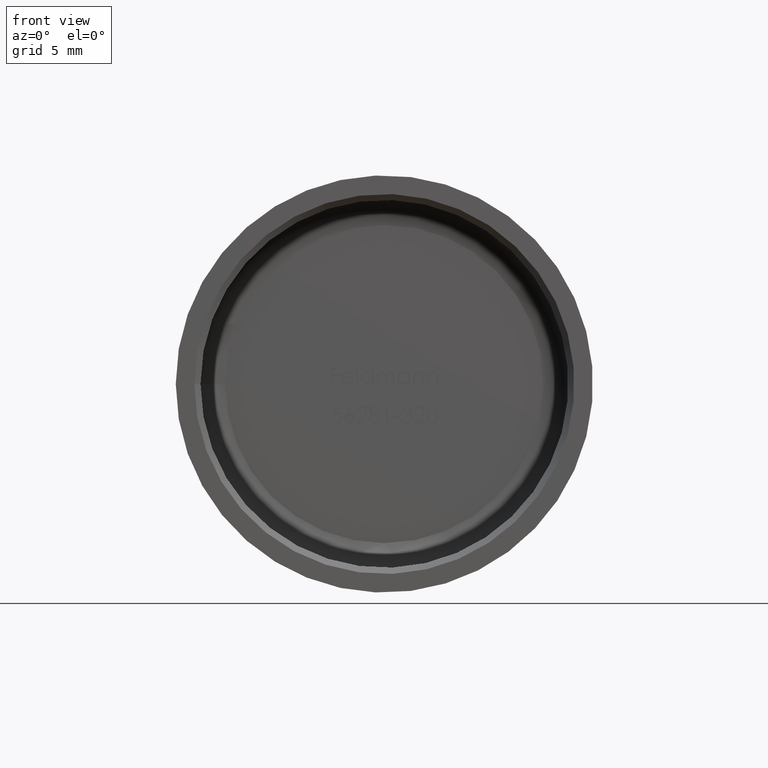
[diagram: clean part render]
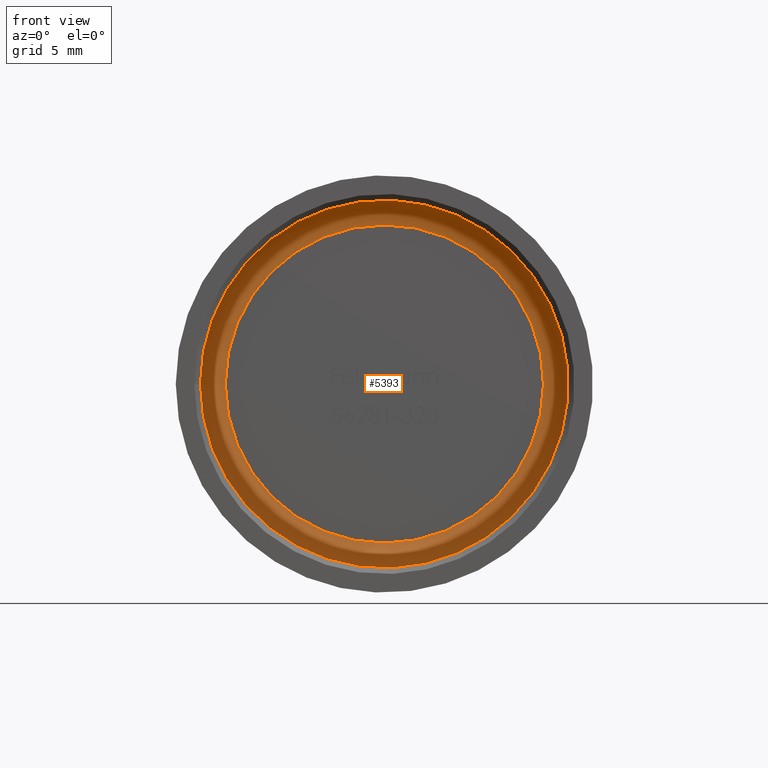
[diagram: same view with one face highlighted and labeled with its STEP entity id]
A machine part, front view. The second image highlights one B-rep face of the part: STEP entity #5393.
In plain terms, the highlighted toroidal blend (fillet) surface has major radius 12.85 mm and minor (blend) radius 2 mm.
Its self-contained STEP definition (entity closure, byte-faithful):
#102 = EDGE_LOOP ( 'NONE', ( #12296 ) ) ;
#1454 = EDGE_CURVE ( 'NONE', #11452, #11452, #11854, .T. ) ;
#2735 = AXIS2_PLACEMENT_3D ( 'NONE', #8286, #8375, #11351 ) ;
#3167 = CARTESIAN_POINT ( 'NONE',  ( -2.174403900812308700E-016, 30.00000000000000000, 0.0000000000000000000 ) ) ;
#4603 = DIRECTION ( 'NONE',  ( -7.248013002707695800E-018, 1.000000000000000000, -0.0000000000000000000 ) ) ;
#5393 = ADVANCED_FACE ( 'NONE', ( #12896, #9121 ), #11250, .F. ) ;
#5947 = CARTESIAN_POINT ( 'NONE',  ( -12.85000000000000000, 32.00000000000000000, 0.0000000000000000000 ) ) ;
#6100 = AXIS2_PLACEMENT_3D ( 'NONE', #6844, #4603, #13133 ) ;
#6844 = CARTESIAN_POINT ( 'NONE',  ( 0.0000000000000000000, 30.00000000000000000, 0.0000000000000000000 ) ) ;
#7048 = CARTESIAN_POINT ( 'NONE',  ( -14.84999999999999800, 30.00000000000000000, 0.0000000000000000000 ) ) ;
#7292 = DIRECTION ( 'NONE',  ( -7.248013002707695800E-018, 1.000000000000000000, -0.0000000000000000000 ) ) ;
#8286 = CARTESIAN_POINT ( 'NONE',  ( -2.319364160866462700E-016, 32.00000000000000000, 0.0000000000000000000 ) ) ;
#8375 = DIRECTION ( 'NONE',  ( -7.248013002707695800E-018, 1.000000000000000000, -0.0000000000000000000 ) ) ;
#9121 = FACE_OUTER_BOUND ( 'NONE', #102, .T. ) ;
#9476 = EDGE_LOOP ( 'NONE', ( #12924 ) ) ;
#11250 = TOROIDAL_SURFACE ( 'NONE', #6100, 12.85000000000000000, 2.000000000000000000 ) ;
#11351 = DIRECTION ( 'NONE',  ( -1.000000000000000000, 0.0000000000000000000, 0.0000000000000000000 ) ) ;
#11452 = VERTEX_POINT ( 'NONE', #7048 ) ;
#11458 = DIRECTION ( 'NONE',  ( -1.000000000000000000, 0.0000000000000000000, 0.0000000000000000000 ) ) ;
#11540 = AXIS2_PLACEMENT_3D ( 'NONE', #3167, #7292, #11458 ) ;
#11854 = CIRCLE ( 'NONE', #11540, 14.84999999999999800 ) ;
#12296 = ORIENTED_EDGE ( 'NONE', *, *, #12721, .T. ) ;
#12721 = EDGE_CURVE ( 'NONE', #13453, #13453, #12797, .T. ) ;
#12797 = CIRCLE ( 'NONE', #2735, 12.85000000000000000 ) ;
#12896 = FACE_OUTER_BOUND ( 'NONE', #9476, .T. ) ;
#12924 = ORIENTED_EDGE ( 'NONE', *, *, #1454, .F. ) ;
#13133 = DIRECTION ( 'NONE',  ( -1.000000000000000000, -7.248013002707695800E-018, 0.0000000000000000000 ) ) ;
#13453 = VERTEX_POINT ( 'NONE', #5947 ) ;